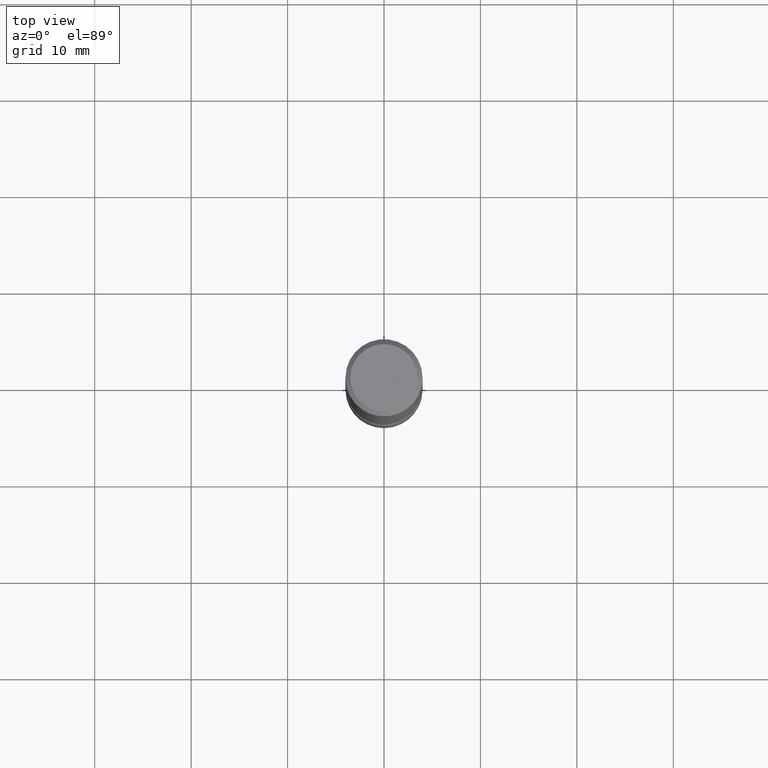
[diagram: clean part render]
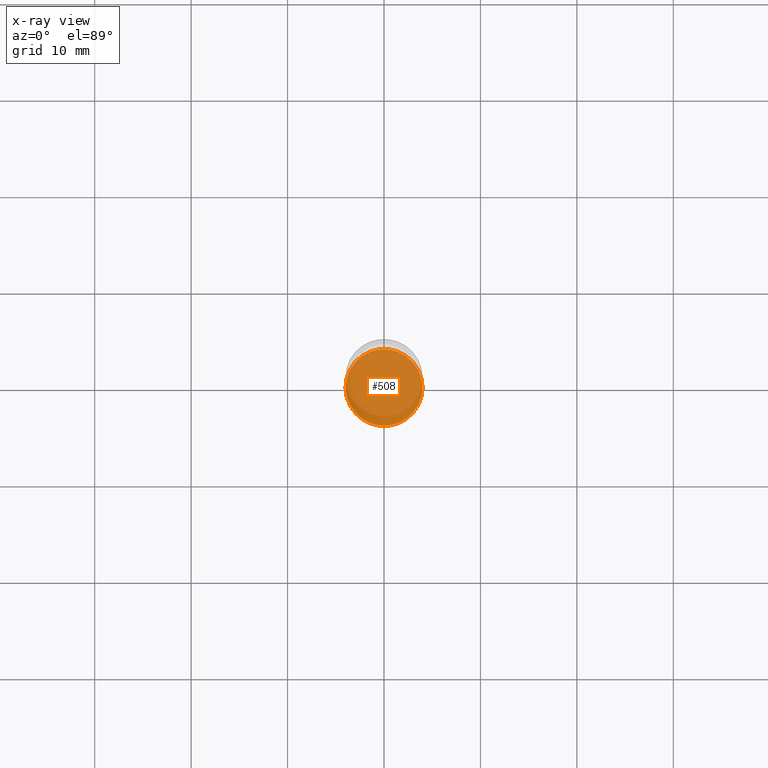
[diagram: x-ray — body ghosted, one internal face saturated and labeled with its STEP entity id]
A machine part, top view, then the same camera in x-ray: the body is ghosted and one INTERNAL B-rep face — a face not visible from any outside direction — is saturated and labeled: STEP entity #508.
In plain terms, the highlighted planar face has unit normal (0, -0, -1).
Its self-contained STEP definition (entity closure, byte-faithful):
#3 = EDGE_LOOP ( 'NONE', ( #522, #311 ) ) ;
#5 = VERTEX_POINT ( 'NONE', #45 ) ;
#7 = DIRECTION ( 'NONE',  ( -1.000000000000000000, 6.982962677686265922E-15, -4.876176775795935793E-29 ) ) ;
#24 = EDGE_CURVE ( 'NONE', #234, #5, #302, .T. ) ;
#45 = CARTESIAN_POINT ( 'NONE',  ( -0.1569999999999995566, -6.992949752029807948E-15, -2.322899999999999743 ) ) ;
#50 = EDGE_CURVE ( 'NONE', #5, #234, #222, .T. ) ;
#129 = DIRECTION ( 'NONE',  ( -1.000000000000000000, 6.982962677686266711E-15, 0.000000000000000000 ) ) ;
#139 = CARTESIAN_POINT ( 'NONE',  ( 5.680579489887452821E-29, -8.110362001998742346E-15, -2.322899999999999743 ) ) ;
#184 = CARTESIAN_POINT ( 'NONE',  ( 5.680579489887452821E-29, -8.110362001998742346E-15, -2.322899999999999743 ) ) ;
#222 = CIRCLE ( 'NONE', #392, 0.1569999999999995566 ) ;
#234 = VERTEX_POINT ( 'NONE', #289 ) ;
#289 = CARTESIAN_POINT ( 'NONE',  ( 0.1569999999999995566, -9.207300028289558199E-15, -2.322899999999999743 ) ) ;
#298 = PLANE ( 'NONE',  #393 ) ;
#302 = CIRCLE ( 'NONE', #370, 0.1569999999999995566 ) ;
#311 = ORIENTED_EDGE ( 'NONE', *, *, #50, .T. ) ;
#319 = DIRECTION ( 'NONE',  ( 2.445468806185136597E-29, -3.491481338843145583E-15, -1.000000000000000000 ) ) ;
#352 = DIRECTION ( 'NONE',  ( 2.438088387897960049E-29, -3.491481338843145188E-15, -1.000000000000000000 ) ) ;
#370 = AXIS2_PLACEMENT_3D ( 'NONE', #139, #525, #445 ) ;
#392 = AXIS2_PLACEMENT_3D ( 'NONE', #184, #319, #129 ) ;
#393 = AXIS2_PLACEMENT_3D ( 'NONE', #482, #352, #7 ) ;
#445 = DIRECTION ( 'NONE',  ( -1.000000000000000000, 6.982962677686266711E-15, 0.000000000000000000 ) ) ;
#482 = CARTESIAN_POINT ( 'NONE',  ( 1.096325140396797524E-15, 0.1569999999999914242, -2.322900000000000187 ) ) ;
#508 = ADVANCED_FACE ( 'NONE', ( #559 ), #298, .T. ) ;
#522 = ORIENTED_EDGE ( 'NONE', *, *, #24, .T. ) ;
#525 = DIRECTION ( 'NONE',  ( 2.445468806185136597E-29, -3.491481338843145583E-15, -1.000000000000000000 ) ) ;
#559 = FACE_OUTER_BOUND ( 'NONE', #3, .T. ) ;